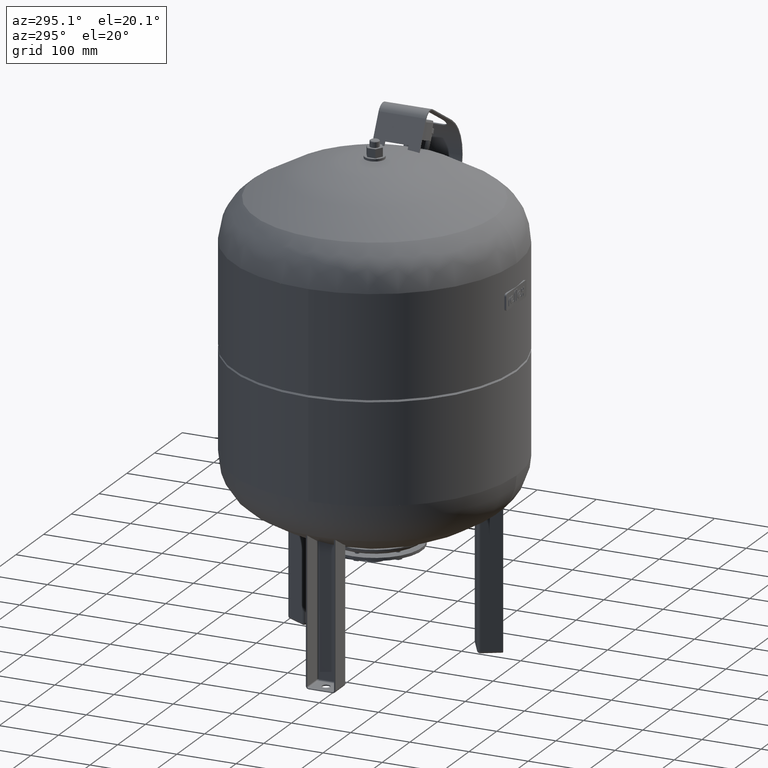
[diagram: clean part render]
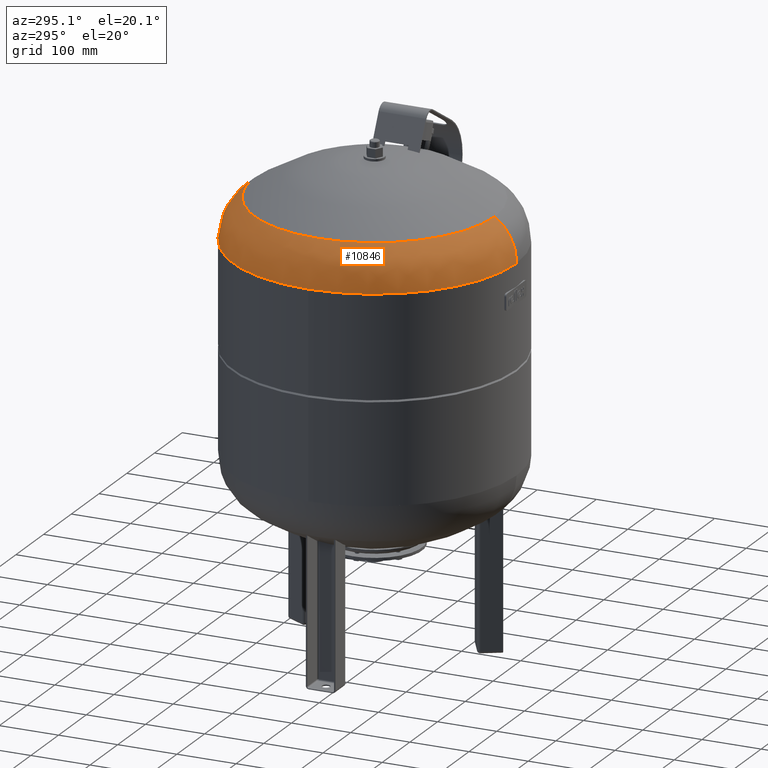
[diagram: same view with one face highlighted and labeled with its STEP entity id]
A machine part, auxiliary view. The second image highlights one B-rep face of the part: STEP entity #10846.
In plain terms, the highlighted face is a freeform B-spline surface patch.
Its self-contained STEP definition (entity closure, byte-faithful):
#10607=CARTESIAN_POINT('',(-240.0,8.193183E-017,670.446016103952270));
#10608=VERTEX_POINT('',#10607);
#10632=CARTESIAN_POINT('',(-8.792549E-015,-240.0,670.446016103952270));
#10633=VERTEX_POINT('',#10632);
#10641=CARTESIAN_POINT('',(2.963866E-017,8.193183E-017,670.446016103952270));
#10642=DIRECTION('',(0.0,0.0,1.0));
#10643=DIRECTION('',(-1.0,0.0,0.0));
#10644=AXIS2_PLACEMENT_3D('',#10641,#10642,#10643);
#10645=CIRCLE('',#10644,240.0);
#10646=EDGE_CURVE('',#10608,#10633,#10645,.T.);
#10704=CARTESIAN_POINT('',(-4.111121E-015,-203.325884543761560,740.894274520860450));
#10705=VERTEX_POINT('',#10704);
#10706=CARTESIAN_POINT('',(-8.792549E-015,-153.999999999999970,670.446016103952160));
#10707=DIRECTION('',(-1.0,0.0,0.0));
#10708=DIRECTION('',(0.0,-1.0,0.0));
#10709=AXIS2_PLACEMENT_3D('',#10706,#10707,#10708);
#10710=CIRCLE('',#10709,86.0);
#10711=EDGE_CURVE('',#10633,#10705,#10710,.T.);
#10714=CARTESIAN_POINT('',(-3.818310E-014,240.0,670.446016103952160));
#10715=VERTEX_POINT('',#10714);
#10723=CARTESIAN_POINT('',(-2.901054E-014,203.325884543761560,740.894274520860340));
#10724=VERTEX_POINT('',#10723);
#10725=CARTESIAN_POINT('',(-2.765149E-014,153.999999999999970,670.446016103952160));
#10726=DIRECTION('',(1.0,0.0,0.0));
#10727=DIRECTION('',(0.0,1.0,0.0));
#10728=AXIS2_PLACEMENT_3D('',#10725,#10726,#10727);
#10729=CIRCLE('',#10728,86.0);
#10730=EDGE_CURVE('',#10715,#10724,#10729,.T.);
#10759=CARTESIAN_POINT('',(-203.325884543761560,1.302307E-014,740.894274520860560));
#10760=VERTEX_POINT('',#10759);
#10761=CARTESIAN_POINT('',(4.711066E-015,1.302307E-014,740.894274520860450));
#10762=DIRECTION('',(0.0,0.0,1.0));
#10763=DIRECTION('',(-1.0,0.0,0.0));
#10764=AXIS2_PLACEMENT_3D('',#10761,#10762,#10763);
#10765=CIRCLE('',#10764,203.325884543761560);
#10766=EDGE_CURVE('',#10760,#10705,#10765,.T.);
#10769=CARTESIAN_POINT('',(4.711066E-015,1.302307E-014,740.894274520860450));
#10770=DIRECTION('',(0.0,0.0,1.0));
#10771=DIRECTION('',(-1.0,0.0,0.0));
#10772=AXIS2_PLACEMENT_3D('',#10769,#10770,#10771);
#10773=CIRCLE('',#10772,203.325884543761560);
#10774=EDGE_CURVE('',#10724,#10760,#10773,.T.);
#10779=CARTESIAN_POINT('',(-1.711987E-014,67.999999999999972,670.446016103952050));
#10780=CARTESIAN_POINT('',(-1.140500E-014,67.999999999999901,756.446016103952160));
#10781=CARTESIAN_POINT('',(-2.193661E-014,153.999999999999970,756.446016103952160));
#10782=CARTESIAN_POINT('',(-3.246823E-014,240.000000000000030,756.446016103952160));
#10783=CARTESIAN_POINT('',(-3.818310E-014,239.999999999999970,670.446016103952050));
#10784=CARTESIAN_POINT('',(-67.999999999999986,67.999999999999943,670.446016103952050));
#10785=CARTESIAN_POINT('',(-67.999999999999886,67.999999999999886,756.446016103952160));
#10786=CARTESIAN_POINT('',(-153.999999999999940,153.999999999999910,756.446016103952160));
#10787=CARTESIAN_POINT('',(-239.999999999999970,239.999999999999940,756.446016103952160));
#10788=CARTESIAN_POINT('',(-239.999999999999940,239.999999999999860,670.446016103952050));
#10789=CARTESIAN_POINT('',(-67.999999999999986,-8.245391E-015,670.446016103952050));
#10790=CARTESIAN_POINT('',(-67.999999999999886,7.552552E-015,756.446016103952160));
#10791=CARTESIAN_POINT('',(-153.999999999999940,-2.979062E-015,756.446016103952160));
#10792=CARTESIAN_POINT('',(-239.999999999999970,-1.351068E-014,756.446016103952160));
#10793=CARTESIAN_POINT('',(-239.999999999999970,-2.930862E-014,670.446016103952050));
#10794=CARTESIAN_POINT('',(-67.999999999999957,-67.999999999999972,670.446016103952050));
#10795=CARTESIAN_POINT('',(-67.999999999999858,-67.999999999999858,756.446016103952160));
#10796=CARTESIAN_POINT('',(-153.999999999999890,-153.999999999999910,756.446016103952160));
#10797=CARTESIAN_POINT('',(-239.999999999999910,-239.999999999999940,756.446016103952160));
#10798=CARTESIAN_POINT('',(-239.999999999999860,-239.999999999999940,670.446016103952050));
#10799=CARTESIAN_POINT('',(-4.652254E-016,-67.999999999999972,670.446016103952050));
#10800=CARTESIAN_POINT('',(5.249646E-015,-67.999999999999872,756.446016103952160));
#10801=CARTESIAN_POINT('',(1.578126E-014,-153.999999999999910,756.446016103952160));
#10802=CARTESIAN_POINT('',(2.631288E-014,-239.999999999999970,756.446016103952160));
#10803=CARTESIAN_POINT('',(2.059800E-014,-239.999999999999970,670.446016103952050));
#10804=CARTESIAN_POINT('',(67.999999999999957,-67.999999999999943,670.446016103952050));
#10805=CARTESIAN_POINT('',(67.999999999999886,-67.999999999999844,756.446016103952160));
#10806=CARTESIAN_POINT('',(153.999999999999940,-153.999999999999890,756.446016103952160));
#10807=CARTESIAN_POINT('',(239.999999999999970,-239.999999999999890,756.446016103952160));
#10808=CARTESIAN_POINT('',(239.999999999999940,-239.999999999999860,670.446016103952050));
#10809=CARTESIAN_POINT('',(67.999999999999957,8.409255E-015,670.446016103952050));
#10810=CARTESIAN_POINT('',(67.999999999999886,2.420720E-014,756.446016103952160));
#10811=CARTESIAN_POINT('',(153.999999999999940,3.473881E-014,756.446016103952160));
#10812=CARTESIAN_POINT('',(239.999999999999970,4.527043E-014,756.446016103952160));
#10813=CARTESIAN_POINT('',(239.999999999999970,2.947248E-014,670.446016103952050));
#10814=CARTESIAN_POINT('',(67.999999999999929,67.999999999999972,670.446016103952050));
#10815=CARTESIAN_POINT('',(67.999999999999858,67.999999999999901,756.446016103952160));
#10816=CARTESIAN_POINT('',(153.999999999999890,153.999999999999940,756.446016103952160));
#10817=CARTESIAN_POINT('',(239.999999999999910,240.0,756.446016103952160));
#10818=CARTESIAN_POINT('',(239.999999999999860,239.999999999999940,670.446016103952050));
#10819=CARTESIAN_POINT('',(-1.711987E-014,67.999999999999972,670.446016103952050));
#10820=CARTESIAN_POINT('',(-1.140500E-014,67.999999999999901,756.446016103952160));
#10821=CARTESIAN_POINT('',(-2.193661E-014,153.999999999999970,756.446016103952160));
#10822=CARTESIAN_POINT('',(-3.246823E-014,240.000000000000030,756.446016103952160));
#10823=CARTESIAN_POINT('',(-3.818310E-014,239.999999999999970,670.446016103952050));
#10831=(BOUNDED_SURFACE()B_SPLINE_SURFACE(2,2,((#10779,#10784,#10789,#10794,#10799,#10804,#10809,#10814,#10819),(#10780,#10785,#10790,#10795,#10800,#10805,#10810,#10815,#10820),(#10781,#10786,#10791,#10796,#10801,#10806,#10811,#10816,#10821),(#10782,#10787,#10792,#10797,#10802,#10807,#10812,#10817,#10822),(#10783,#10788,#10793,#10798,#10803,#10808,#10813,#10818,#10823)),.UNSPECIFIED.,.F.,.T.,.U.)B_SPLINE_SURFACE_WITH_KNOTS((3,2,3),(3,2,2,2,3),(-3.141592653589794,-1.570796326794897,6.980903E-016),(0.0,1.570796326794897,3.141592653589793,4.712388980384690,6.283185307179586),.UNSPECIFIED.)GEOMETRIC_REPRESENTATION_ITEM()RATIONAL_B_SPLINE_SURFACE(((1.0,0.707106781186548,1.0,0.707106781186548,1.0,0.707106781186548,1.0,0.707106781186548,1.0),(0.707106781186546,0.499999999999999,0.707106781186546,0.499999999999999,0.707106781186546,0.499999999999999,0.707106781186546,0.499999999999999,0.707106781186546),(1.0,0.707106781186548,1.0,0.707106781186548,1.0,0.707106781186548,1.0,0.707106781186548,1.0),(0.707106781186545,0.499999999999999,0.707106781186545,0.499999999999999,0.707106781186545,0.499999999999999,0.707106781186545,0.499999999999999,0.707106781186545),(1.0,0.707106781186548,1.0,0.707106781186548,1.0,0.707106781186548,1.0,0.707106781186548,1.0)))REPRESENTATION_ITEM('')SURFACE());
#10832=ORIENTED_EDGE('',*,*,#10711,.T.);
#10833=ORIENTED_EDGE('',*,*,#10766,.F.);
#10834=ORIENTED_EDGE('',*,*,#10774,.F.);
#10835=ORIENTED_EDGE('',*,*,#10730,.F.);
#10836=CARTESIAN_POINT('',(2.963866E-017,8.193183E-017,670.446016103952270));
#10837=DIRECTION('',(0.0,0.0,1.0));
#10838=DIRECTION('',(-1.0,0.0,0.0));
#10839=AXIS2_PLACEMENT_3D('',#10836,#10837,#10838);
#10840=CIRCLE('',#10839,240.0);
#10841=EDGE_CURVE('',#10715,#10608,#10840,.T.);
#10842=ORIENTED_EDGE('',*,*,#10841,.T.);
#10843=ORIENTED_EDGE('',*,*,#10646,.T.);
#10844=EDGE_LOOP('',(#10832,#10833,#10834,#10835,#10842,#10843));
#10845=FACE_OUTER_BOUND('',#10844,.T.);
#10846=ADVANCED_FACE('',(#10845),#10831,.T.);